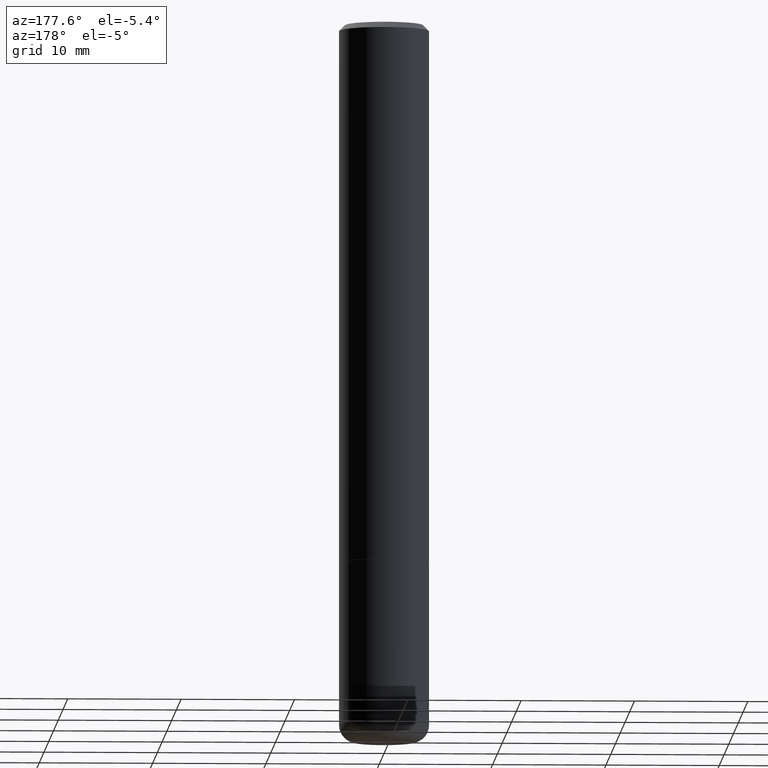
[diagram: clean part render]
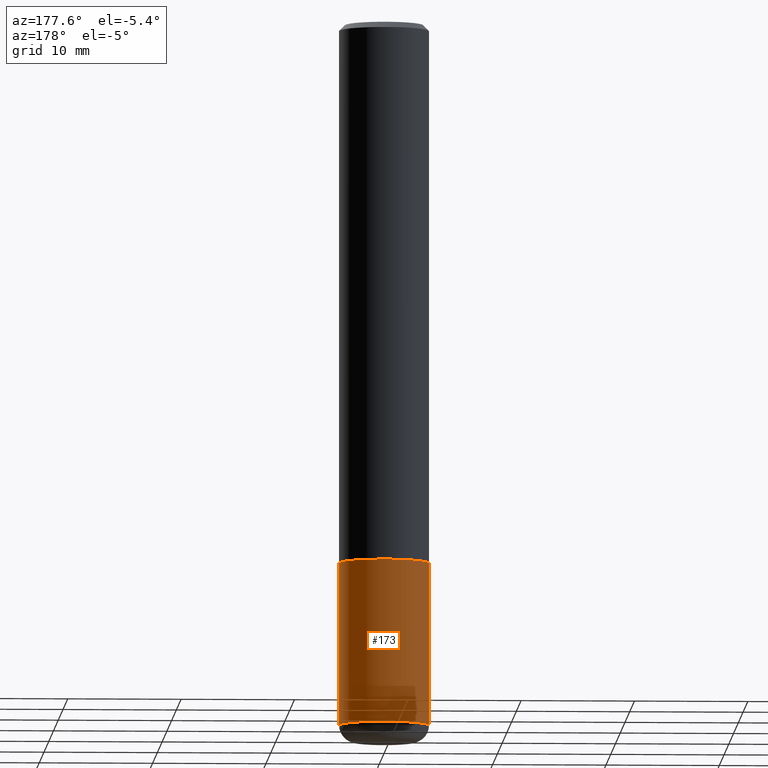
[diagram: same view with one face highlighted and labeled with its STEP entity id]
A machine part, auxiliary view. The second image highlights one B-rep face of the part: STEP entity #173.
In plain terms, the highlighted cylindrical surface (partial cylindrical patch) has radius 3.9688 mm, axis along (-0, 0, 1).
Its self-contained STEP definition (entity closure, byte-faithful):
#3 = VERTEX_POINT ( 'NONE', #11 ) ;
#11 = CARTESIAN_POINT ( 'NONE',  ( -0.1562500000000001110, -7.408991442152118508E-15, -2.440000000000000391 ) ) ;
#15 = DIRECTION ( 'NONE',  ( 1.000000000000000000, -6.982962677686266711E-15, 4.876176775795936353E-29 ) ) ;
#17 = CARTESIAN_POINT ( 'NONE',  ( -0.1562500000000000000, -6.422647963928930337E-15, -1.875000000000000000 ) ) ;
#32 = LINE ( 'NONE', #317, #150 ) ;
#33 = ORIENTED_EDGE ( 'NONE', *, *, #355, .F. ) ;
#58 = CARTESIAN_POINT ( 'NONE',  ( 0.1562500000000001110, -9.610302385165753433E-15, -2.440000000000000391 ) ) ;
#61 = CIRCLE ( 'NONE', #172, 0.1562500000000000000 ) ;
#84 = DIRECTION ( 'NONE',  ( -2.445468806185136597E-29, 3.491481338843145583E-15, 1.000000000000000000 ) ) ;
#90 = DIRECTION ( 'NONE',  ( -2.445468806185136877E-29, 3.491481338843145188E-15, 1.000000000000000000 ) ) ;
#91 = ORIENTED_EDGE ( 'NONE', *, *, #323, .T. ) ;
#116 = CARTESIAN_POINT ( 'NONE',  ( 0.000000000000000000, 0.000000000000000000, 0.000000000000000000 ) ) ;
#131 = DIRECTION ( 'NONE',  ( 1.000000000000000000, -6.982962677686269077E-15, 0.000000000000000000 ) ) ;
#150 = VECTOR ( 'NONE', #90, 39.37007874015748143 ) ;
#153 = FACE_OUTER_BOUND ( 'NONE', #400, .T. ) ;
#161 = CARTESIAN_POINT ( 'NONE',  ( 4.585254011597131119E-29, -6.546527510330898707E-15, -1.875000000000000000 ) ) ;
#165 = AXIS2_PLACEMENT_3D ( 'NONE', #161, #192, #131 ) ;
#172 = AXIS2_PLACEMENT_3D ( 'NONE', #346, #84, #215 ) ;
#173 = ADVANCED_FACE ( 'NONE', ( #153 ), #378, .T. ) ;
#192 = DIRECTION ( 'NONE',  ( -2.445468806185136597E-29, 3.491481338843145583E-15, 1.000000000000000000 ) ) ;
#195 = VERTEX_POINT ( 'NONE', #17 ) ;
#211 = EDGE_CURVE ( 'NONE', #414, #3, #61, .T. ) ;
#215 = DIRECTION ( 'NONE',  ( 1.000000000000000000, -6.982962677686262766E-15, 0.000000000000000000 ) ) ;
#220 = DIRECTION ( 'NONE',  ( -2.445468806185136597E-29, 3.491481338843145583E-15, 1.000000000000000000 ) ) ;
#229 = DIRECTION ( 'NONE',  ( -2.445468806185136877E-29, 3.491481338843145188E-15, 1.000000000000000000 ) ) ;
#258 = CARTESIAN_POINT ( 'NONE',  ( 0.1562500000000000000, -7.637615428719378669E-15, -1.875000000000000000 ) ) ;
#264 = ORIENTED_EDGE ( 'NONE', *, *, #211, .T. ) ;
#283 = CIRCLE ( 'NONE', #165, 0.1562500000000000000 ) ;
#295 = VERTEX_POINT ( 'NONE', #258 ) ;
#299 = AXIS2_PLACEMENT_3D ( 'NONE', #116, #220, #15 ) ;
#317 = CARTESIAN_POINT ( 'NONE',  ( -0.1562500000000000000, 1.110223024625156540E-15, -7.685836078523291160E-30 ) ) ;
#319 = LINE ( 'NONE', #392, #411 ) ;
#323 = EDGE_CURVE ( 'NONE', #3, #195, #32, .T. ) ;
#333 = EDGE_CURVE ( 'NONE', #414, #295, #319, .T. ) ;
#346 = CARTESIAN_POINT ( 'NONE',  ( 5.966943887091733341E-29, -8.519214466777275048E-15, -2.440000000000000391 ) ) ;
#355 = EDGE_CURVE ( 'NONE', #295, #195, #283, .T. ) ;
#378 = CYLINDRICAL_SURFACE ( 'NONE', #299, 0.1562500000000000000 ) ;
#387 = ORIENTED_EDGE ( 'NONE', *, *, #333, .F. ) ;
#392 = CARTESIAN_POINT ( 'NONE',  ( 0.1562500000000000000, -1.091087918388479174E-15, 7.619026212181150377E-30 ) ) ;
#400 = EDGE_LOOP ( 'NONE', ( #264, #91, #33, #387 ) ) ;
#411 = VECTOR ( 'NONE', #229, 39.37007874015748143 ) ;
#414 = VERTEX_POINT ( 'NONE', #58 ) ;